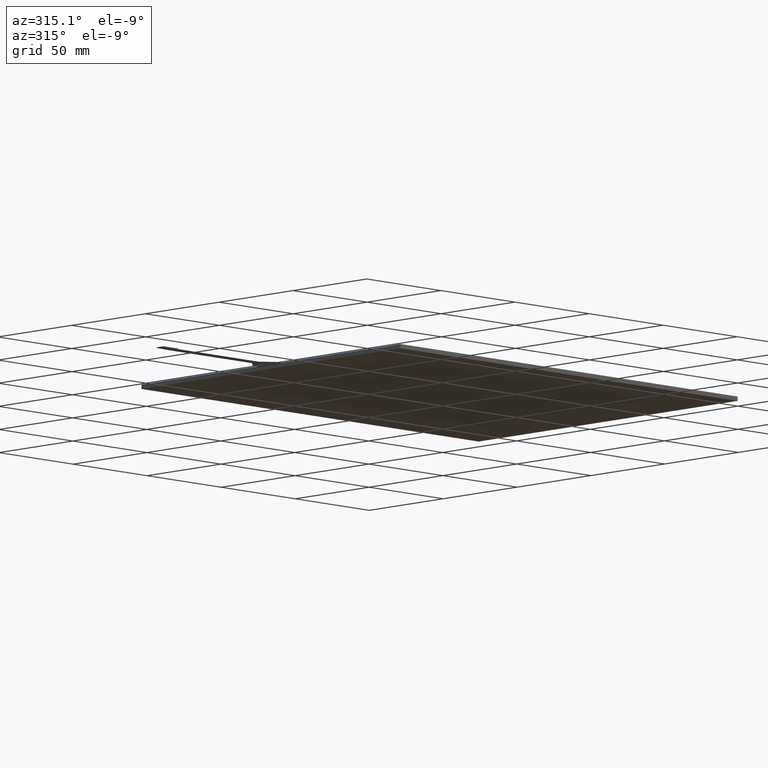
[diagram: clean part render]
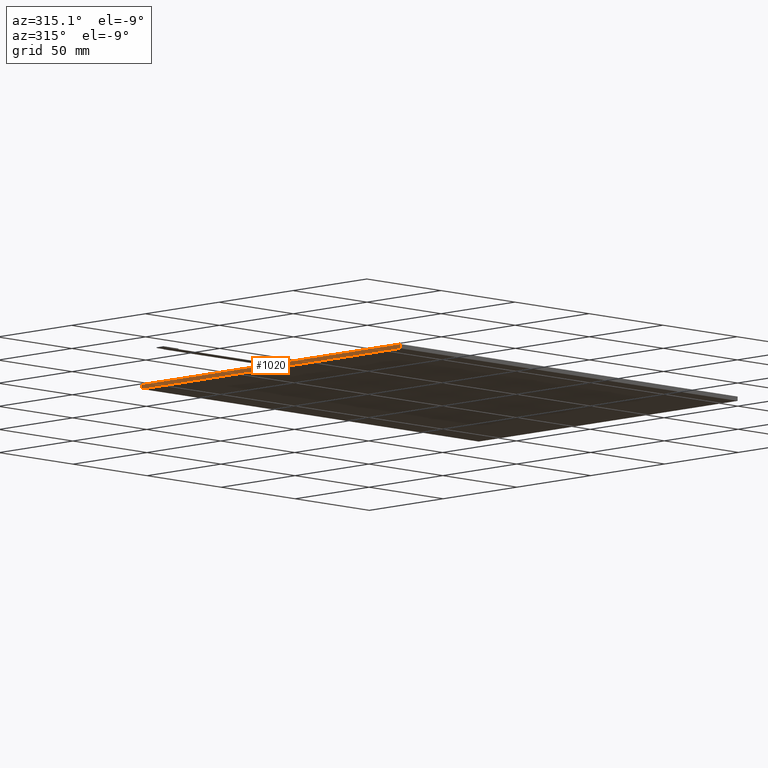
[diagram: same view with one face highlighted and labeled with its STEP entity id]
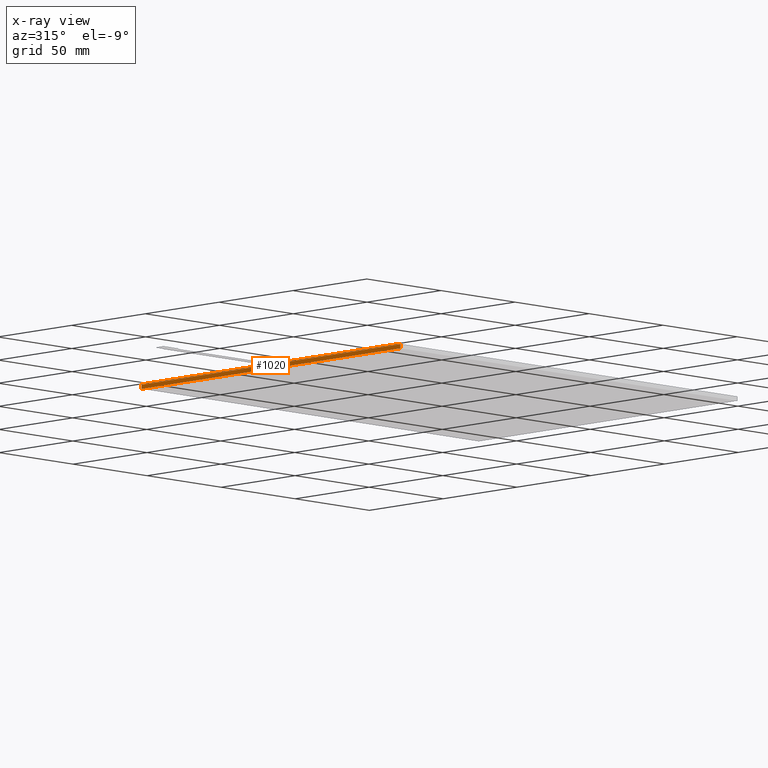
[diagram: x-ray of the same camera — body ghosted, the highlighted face saturated]
A machine part, auxiliary view. The second image highlights one B-rep face of the part: STEP entity #1020.
The next image is the same camera in x-ray: the body ghosted, the highlighted face saturated — about 0% of this face is hidden behind the body in this view.
In plain terms, the highlighted planar face has unit normal (-1, -0, 0).
Its self-contained STEP definition (entity closure, byte-faithful):
#48=FACE_BOUND('',#193,.T.);
#88=PLANE('',#1103);
#139=FACE_OUTER_BOUND('',#192,.T.);
#192=EDGE_LOOP('',(#941,#942,#943,#944));
#193=EDGE_LOOP('',(#945,#946,#947,#948));
#205=LINE('',#1383,#331);
#213=LINE('',#1407,#339);
#286=LINE('',#1564,#412);
#288=LINE('',#1568,#414);
#314=LINE('',#1623,#440);
#317=LINE('',#1629,#443);
#318=LINE('',#1631,#444);
#319=LINE('',#1632,#445);
#331=VECTOR('',#1127,10.);
#339=VECTOR('',#1147,10.);
#412=VECTOR('',#1288,10.);
#414=VECTOR('',#1294,10.);
#440=VECTOR('',#1340,10.);
#443=VECTOR('',#1345,10.);
#444=VECTOR('',#1346,10.);
#445=VECTOR('',#1347,10.);
#469=VERTEX_POINT('',#1380);
#470=VERTEX_POINT('',#1382);
#480=VERTEX_POINT('',#1406);
#530=VERTEX_POINT('',#1562);
#548=VERTEX_POINT('',#1620);
#549=VERTEX_POINT('',#1622);
#551=VERTEX_POINT('',#1628);
#552=VERTEX_POINT('',#1630);
#563=EDGE_CURVE('',#470,#469,#205,.T.);
#575=EDGE_CURVE('',#480,#470,#213,.T.);
#654=EDGE_CURVE('',#469,#530,#286,.T.);
#656=EDGE_CURVE('',#530,#480,#288,.T.);
#682=EDGE_CURVE('',#548,#549,#314,.T.);
#685=EDGE_CURVE('',#548,#551,#317,.T.);
#686=EDGE_CURVE('',#552,#551,#318,.T.);
#687=EDGE_CURVE('',#549,#552,#319,.T.);
#941=ORIENTED_EDGE('',*,*,#682,.F.);
#942=ORIENTED_EDGE('',*,*,#685,.T.);
#943=ORIENTED_EDGE('',*,*,#686,.F.);
#944=ORIENTED_EDGE('',*,*,#687,.F.);
#945=ORIENTED_EDGE('',*,*,#575,.T.);
#946=ORIENTED_EDGE('',*,*,#563,.T.);
#947=ORIENTED_EDGE('',*,*,#654,.T.);
#948=ORIENTED_EDGE('',*,*,#656,.T.);
#1020=ADVANCED_FACE('',(#139,#48),#88,.T.);
#1103=AXIS2_PLACEMENT_3D('',#1627,#1343,#1344);
#1127=DIRECTION('',(-1.01274620262272E-16,1.,0.));
#1147=DIRECTION('',(0.,0.,-1.));
#1288=DIRECTION('',(0.,0.,1.));
#1294=DIRECTION('',(1.01274620262272E-16,-1.,0.));
#1340=DIRECTION('',(1.01274620262272E-16,-1.,0.));
#1343=DIRECTION('center_axis',(-1.,-1.01274620262272E-16,0.));
#1344=DIRECTION('ref_axis',(-1.01274620262272E-16,1.,0.));
#1345=DIRECTION('',(0.,0.,-1.));
#1346=DIRECTION('',(-1.01274620262272E-16,1.,0.));
#1347=DIRECTION('',(0.,0.,-1.));
#1380=CARTESIAN_POINT('',(-115.6,7.99999999999998,-0.3));
#1382=CARTESIAN_POINT('',(-115.6,-8.00000000000002,-0.3));
#1383=CARTESIAN_POINT('',(-115.6,-43.85,-0.3));
#1406=CARTESIAN_POINT('',(-115.6,-8.00000000000002,-0.2));
#1407=CARTESIAN_POINT('',(-115.6,-8.00000000000001,-0.1));
#1562=CARTESIAN_POINT('',(-115.6,7.99999999999998,-0.2));
#1564=CARTESIAN_POINT('',(-115.6,7.99999999999998,-0.1));
#1568=CARTESIAN_POINT('',(-115.6,-43.85,-0.2));
#1620=CARTESIAN_POINT('',(-115.6,87.7,0.));
#1622=CARTESIAN_POINT('',(-115.6,-87.7,0.));
#1623=CARTESIAN_POINT('',(-115.6,87.7000000000001,0.));
#1627=CARTESIAN_POINT('Origin',(-115.6,-87.7,0.));
#1628=CARTESIAN_POINT('',(-115.6,87.7,-2.1));
#1629=CARTESIAN_POINT('',(-115.6,87.7,0.));
#1630=CARTESIAN_POINT('',(-115.6,-87.7,-2.1));
#1631=CARTESIAN_POINT('',(-115.6,87.7000000000001,-2.1));
#1632=CARTESIAN_POINT('',(-115.6,-87.7,0.));